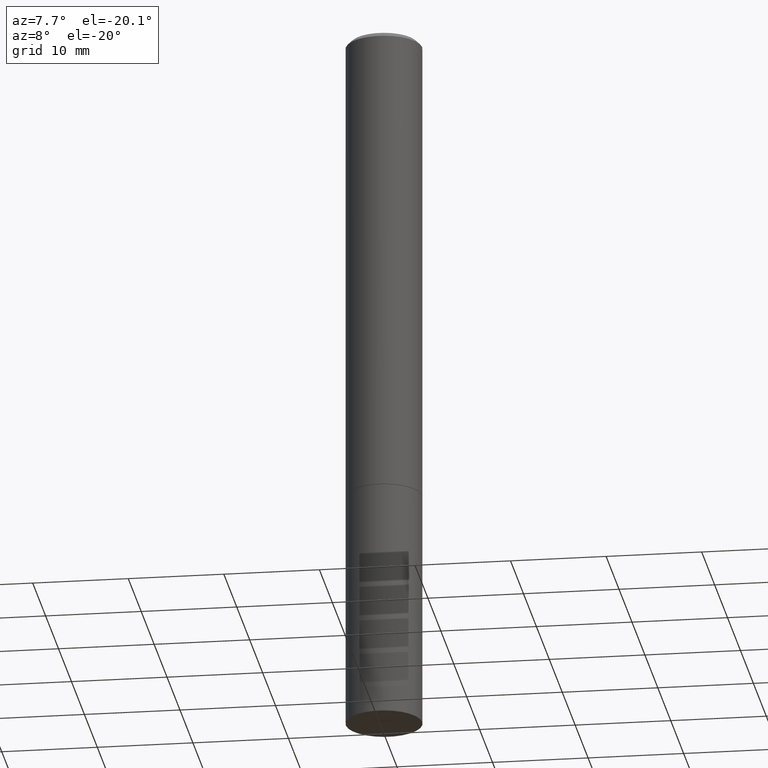
[diagram: clean part render]
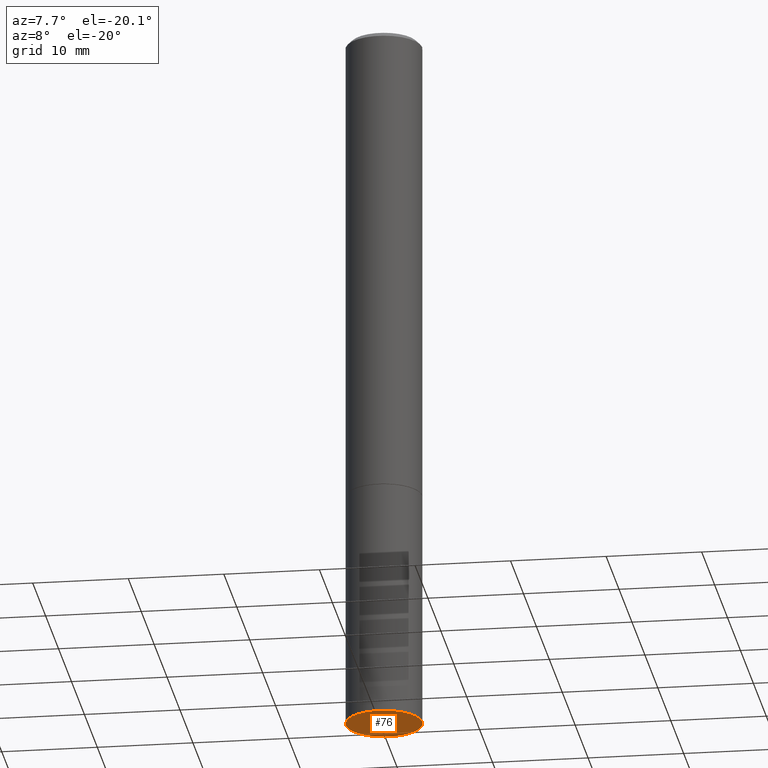
[diagram: same view with one face highlighted and labeled with its STEP entity id]
A machine part, auxiliary view. The second image highlights one B-rep face of the part: STEP entity #76.
In plain terms, the highlighted planar face has unit normal (0, -0, -1).
Its self-contained STEP definition (entity closure, byte-faithful):
#9 = CIRCLE ( 'NONE', #283, 0.1575000000000000011 ) ;
#46 = ORIENTED_EDGE ( 'NONE', *, *, #55, .F. ) ;
#52 = DIRECTION ( 'NONE',  ( 1.000000000000000000, -6.982962677686261977E-15, 0.000000000000000000 ) ) ;
#55 = EDGE_CURVE ( 'NONE', #313, #191, #9, .T. ) ;
#76 = ADVANCED_FACE ( 'NONE', ( #292 ), #88, .T. ) ;
#79 = CARTESIAN_POINT ( 'NONE',  ( 7.220980290903470182E-29, -1.030964609733603853E-14, -2.952799999999999869 ) ) ;
#82 = CIRCLE ( 'NONE', #339, 0.1575000000000000011 ) ;
#88 = PLANE ( 'NONE',  #311 ) ;
#132 = CARTESIAN_POINT ( 'NONE',  ( 0.1575000000000000011, -1.140946271907162522E-14, -2.952799999999999869 ) ) ;
#155 = CARTESIAN_POINT ( 'NONE',  ( 1.099816621735659069E-15, 0.1574999999999896760, -2.952800000000000313 ) ) ;
#177 = EDGE_LOOP ( 'NONE', ( #46, #194 ) ) ;
#181 = DIRECTION ( 'NONE',  ( -1.000000000000000000, 6.982962677686265922E-15, -4.876176775795935793E-29 ) ) ;
#191 = VERTEX_POINT ( 'NONE', #205 ) ;
#193 = DIRECTION ( 'NONE',  ( 1.000000000000000000, -6.982962677686261977E-15, 0.000000000000000000 ) ) ;
#194 = ORIENTED_EDGE ( 'NONE', *, *, #342, .F. ) ;
#200 = DIRECTION ( 'NONE',  ( -2.445468806185136597E-29, 3.491481338843145583E-15, 1.000000000000000000 ) ) ;
#205 = CARTESIAN_POINT ( 'NONE',  ( -0.1575000000000000011, -7.472208747602227514E-15, -2.952799999999999869 ) ) ;
#243 = DIRECTION ( 'NONE',  ( -2.445468806185136597E-29, 3.491481338843145583E-15, 1.000000000000000000 ) ) ;
#245 = CARTESIAN_POINT ( 'NONE',  ( 7.220980290903470182E-29, -1.030964609733603853E-14, -2.952799999999999869 ) ) ;
#267 = DIRECTION ( 'NONE',  ( 2.438088387897960049E-29, -3.491481338843145188E-15, -1.000000000000000000 ) ) ;
#283 = AXIS2_PLACEMENT_3D ( 'NONE', #79, #200, #52 ) ;
#292 = FACE_OUTER_BOUND ( 'NONE', #177, .T. ) ;
#311 = AXIS2_PLACEMENT_3D ( 'NONE', #155, #267, #181 ) ;
#313 = VERTEX_POINT ( 'NONE', #132 ) ;
#339 = AXIS2_PLACEMENT_3D ( 'NONE', #245, #243, #193 ) ;
#342 = EDGE_CURVE ( 'NONE', #191, #313, #82, .T. ) ;